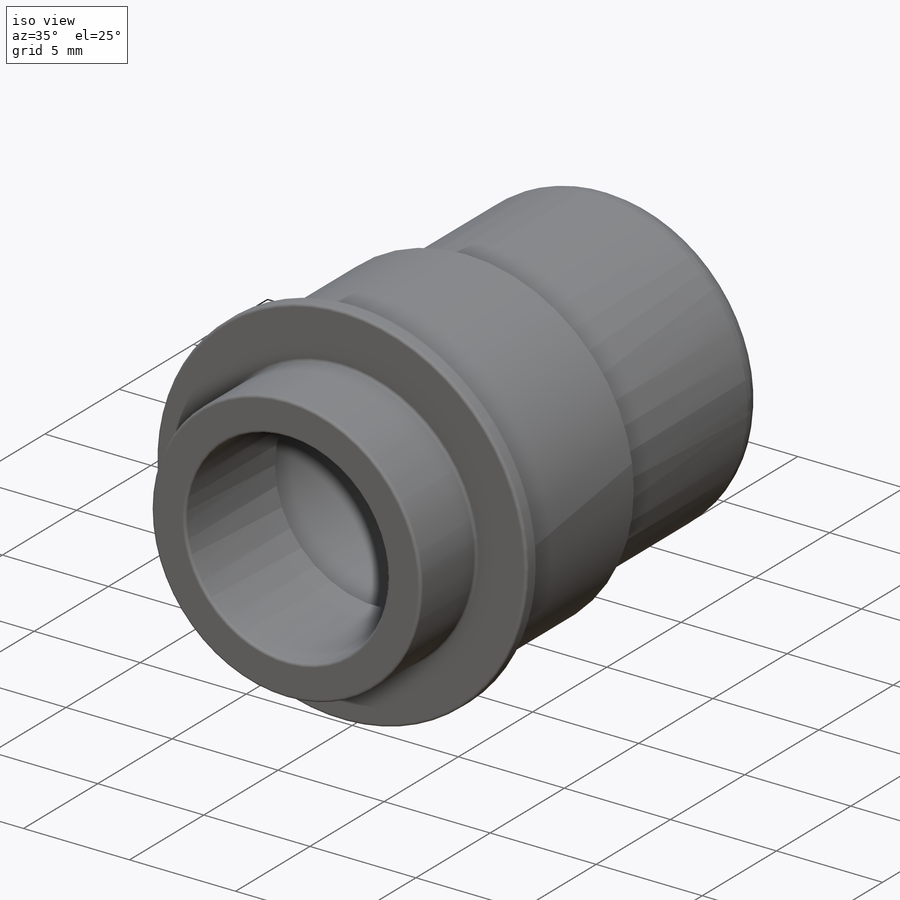
[diagram: iso view]
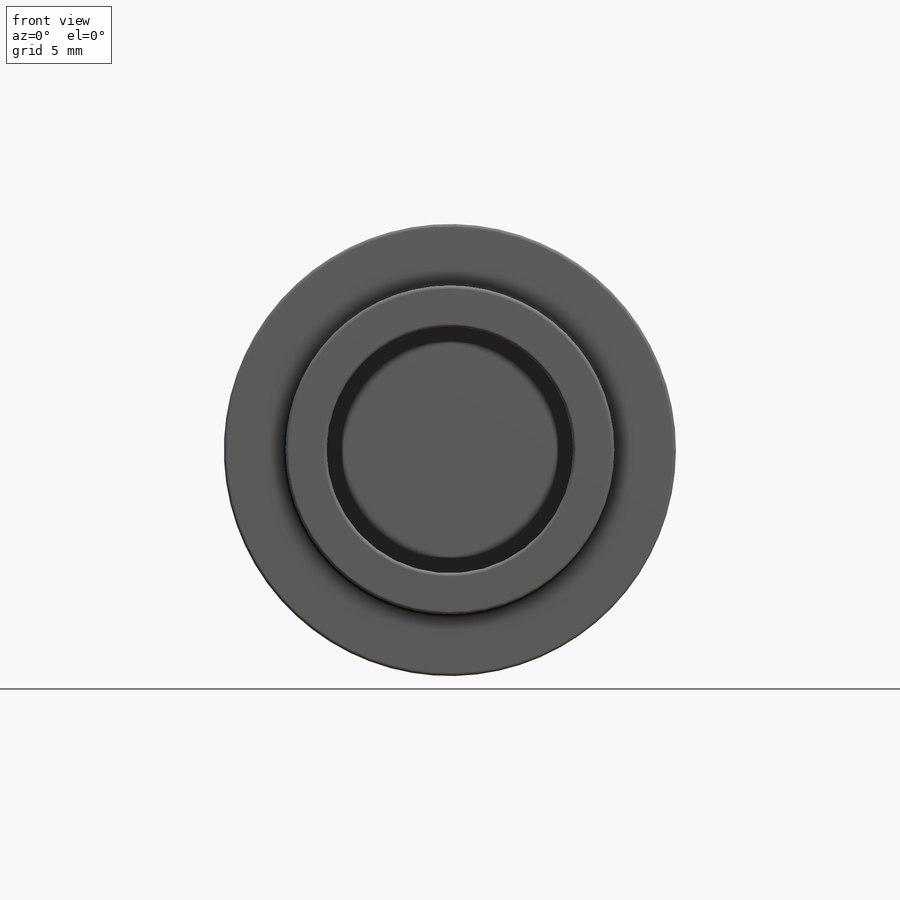
[diagram: front view]
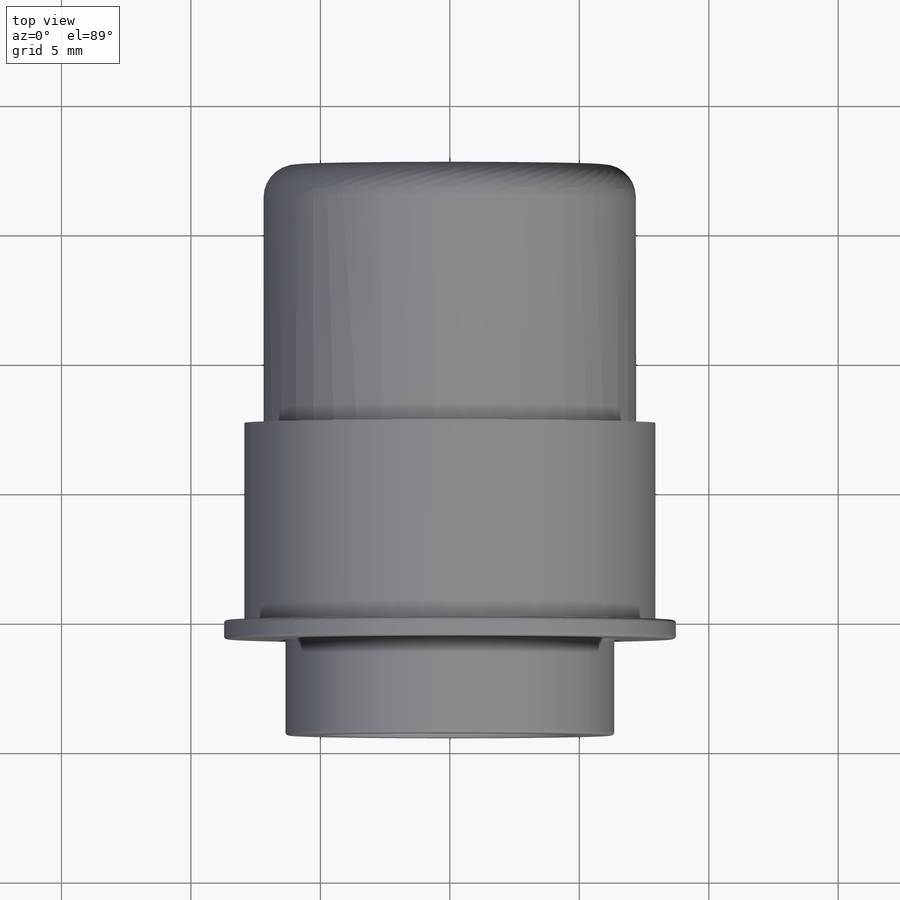
[diagram: top view]
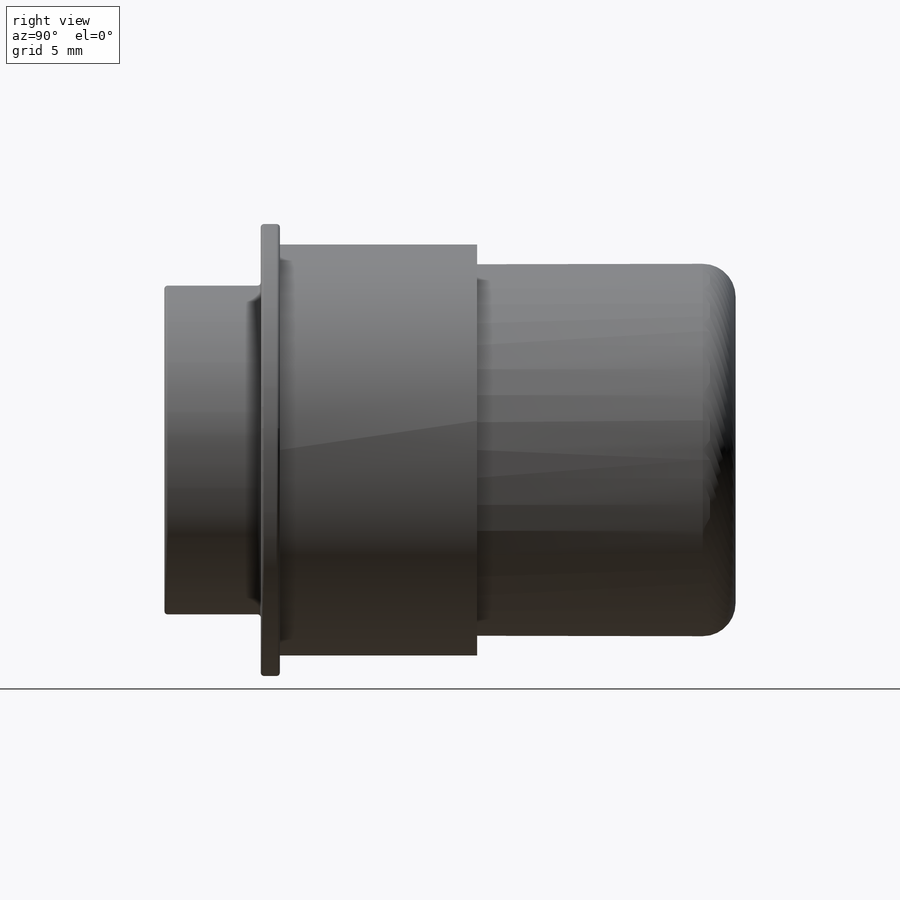
[diagram: right view]
SOLIDWORKS PART (.sldprt)
format: sldprt  version: not decoded by parser v0  size: 351,232 bytes
history: native  units: mm
features: sketch x7, extrude x5, cut_extrude x2, fillet x2, material x1 (+17 scaffold rows collapsed)
feature tree (34):
  scaffold x17  (default folders/planes/origin — collapsed)
  material  "Stainless Steel (ferritic)"
  sketch  "Sketch1"  dims[D1=17.4625mm]
  extrude  "Extrude1"  Depth=0.7366mm
  sketch  "Sketch2"  dims[D1=12.7mm]
  extrude  "Extrude2"  Depth=3.7211mm
  sketch  "Sketch4"  dims[D1=15.875mm]
  extrude  "Extrude4"  Depth=7.62mm
  sketch  "Sketch5"  dims[D1=14.3891mm]
  extrude  "Extrude5"  Depth=8.8138mm
  sketch  "Sketch6"  dims[D1=11.049mm]
  cut_extrude  "Extrude6"  Depth=1.5875mm
  sketch  "Sketch3"  dims[D1=9.525mm]
  cut_extrude  "Extrude3"  [1 undecoded]
  sketch  "Sketch7"
  extrude  "Extrude7"  Depth=1.1684mm
  fillet  "Fillet1"  Radius=1.27mm
  fillet  "Fillet2"  Radius=0.127mm
decode coverage: 14 of 16 modeling features carry decoded parameters
note: 1 parameter value undecoded
note: suppression state not decoded; provenance and decode notes live in map.json
